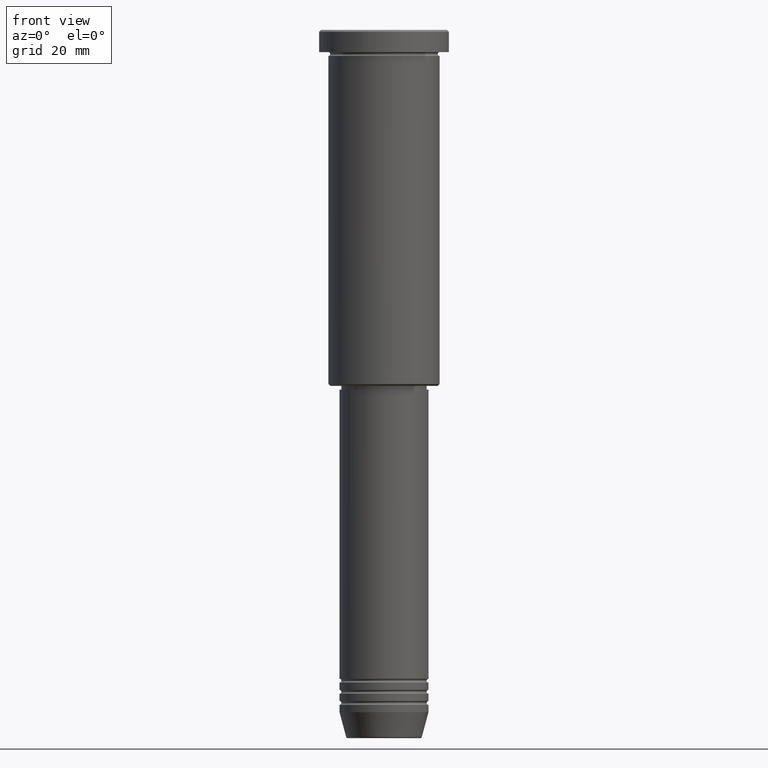
[diagram: clean part render]
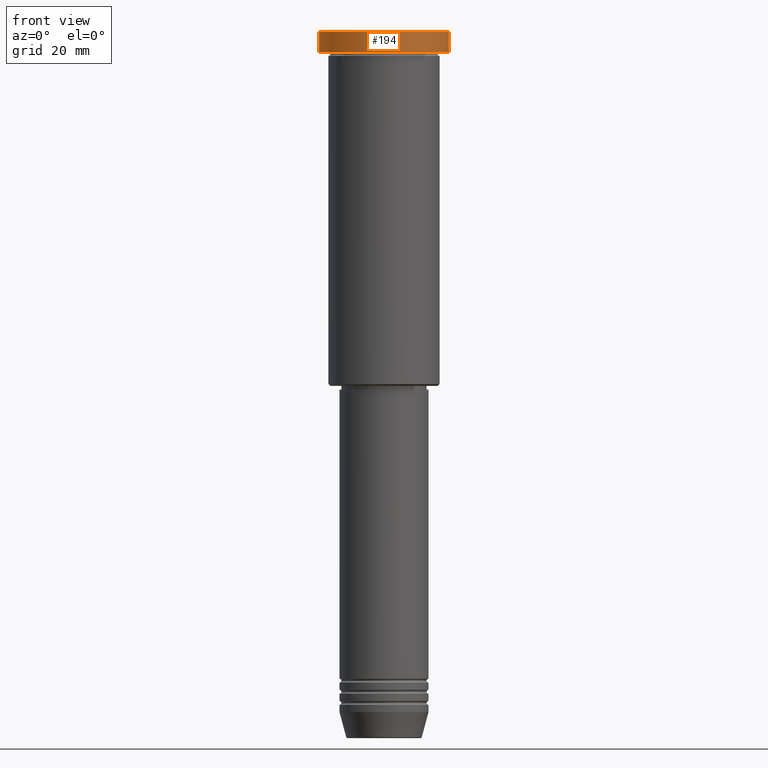
[diagram: same view with one face highlighted and labeled with its STEP entity id]
A machine part, front view. The second image highlights one B-rep face of the part: STEP entity #194.
In plain terms, the highlighted cylindrical surface (partial cylindrical patch) has radius 17.5 mm, axis along (-0, -0, 1).
Its self-contained STEP definition (entity closure, byte-faithful):
#7 = CARTESIAN_POINT ( 'NONE',  ( 0.000000000000000000, 0.000000000000000000, 0.000000000000000000 ) ) ;
#21 = CIRCLE ( 'NONE', #420, 17.50000000000000000 ) ;
#31 = EDGE_CURVE ( 'NONE', #671, #658, #1050, .T. ) ;
#36 = AXIS2_PLACEMENT_3D ( 'NONE', #1172, #692, #148 ) ;
#143 = CARTESIAN_POINT ( 'NONE',  ( -17.50000000000000000, 2.143131898507868248E-15, -5.999999999999995559 ) ) ;
#148 = DIRECTION ( 'NONE',  ( 1.000000000000000000, 0.000000000000000000, 0.000000000000000000 ) ) ;
#180 = VERTEX_POINT ( 'NONE', #541 ) ;
#190 = LINE ( 'NONE', #290, #1083 ) ;
#194 = ADVANCED_FACE ( 'NONE', ( #1086 ), #802, .T. ) ;
#290 = CARTESIAN_POINT ( 'NONE',  ( 17.50000000000000000, 0.000000000000000000, 0.000000000000000000 ) ) ;
#335 = DIRECTION ( 'NONE',  ( -0.000000000000000000, -0.000000000000000000, 1.000000000000000000 ) ) ;
#378 = DIRECTION ( 'NONE',  ( -0.000000000000000000, -0.000000000000000000, 1.000000000000000000 ) ) ;
#391 = VERTEX_POINT ( 'NONE', #143 ) ;
#420 = AXIS2_PLACEMENT_3D ( 'NONE', #1138, #335, #730 ) ;
#447 = CARTESIAN_POINT ( 'NONE',  ( 17.50000000000000000, 0.000000000000000000, -0.5000000000000003331 ) ) ;
#448 = EDGE_LOOP ( 'NONE', ( #900, #626, #548, #1074 ) ) ;
#469 = EDGE_CURVE ( 'NONE', #391, #180, #21, .T. ) ;
#541 = CARTESIAN_POINT ( 'NONE',  ( 17.50000000000000000, 0.000000000000000000, -5.999999999999995559 ) ) ;
#548 = ORIENTED_EDGE ( 'NONE', *, *, #795, .T. ) ;
#626 = ORIENTED_EDGE ( 'NONE', *, *, #469, .T. ) ;
#627 = LINE ( 'NONE', #714, #641 ) ;
#628 = CARTESIAN_POINT ( 'NONE',  ( -17.50000000000000000, 2.143131898507868248E-15, -0.5000000000000003331 ) ) ;
#633 = DIRECTION ( 'NONE',  ( 1.000000000000000000, 0.000000000000000000, 0.000000000000000000 ) ) ;
#641 = VECTOR ( 'NONE', #1093, 1000.000000000000000 ) ;
#658 = VERTEX_POINT ( 'NONE', #628 ) ;
#671 = VERTEX_POINT ( 'NONE', #447 ) ;
#692 = DIRECTION ( 'NONE',  ( 0.000000000000000000, 0.000000000000000000, -1.000000000000000000 ) ) ;
#714 = CARTESIAN_POINT ( 'NONE',  ( -17.50000000000000000, 2.143131898507868248E-15, 0.000000000000000000 ) ) ;
#730 = DIRECTION ( 'NONE',  ( 1.000000000000000000, 0.000000000000000000, 0.000000000000000000 ) ) ;
#795 = EDGE_CURVE ( 'NONE', #180, #671, #190, .T. ) ;
#802 = CYLINDRICAL_SURFACE ( 'NONE', #908, 17.50000000000000000 ) ;
#900 = ORIENTED_EDGE ( 'NONE', *, *, #910, .F. ) ;
#908 = AXIS2_PLACEMENT_3D ( 'NONE', #7, #378, #633 ) ;
#910 = EDGE_CURVE ( 'NONE', #391, #658, #627, .T. ) ;
#1050 = CIRCLE ( 'NONE', #36, 17.50000000000000000 ) ;
#1074 = ORIENTED_EDGE ( 'NONE', *, *, #31, .T. ) ;
#1083 = VECTOR ( 'NONE', #1106, 1000.000000000000000 ) ;
#1086 = FACE_OUTER_BOUND ( 'NONE', #448, .T. ) ;
#1093 = DIRECTION ( 'NONE',  ( -0.000000000000000000, -0.000000000000000000, 1.000000000000000000 ) ) ;
#1106 = DIRECTION ( 'NONE',  ( -0.000000000000000000, -0.000000000000000000, 1.000000000000000000 ) ) ;
#1138 = CARTESIAN_POINT ( 'NONE',  ( 0.000000000000000000, 0.000000000000000000, -5.999999999999995559 ) ) ;
#1172 = CARTESIAN_POINT ( 'NONE',  ( 0.000000000000000000, 0.000000000000000000, -0.5000000000000003331 ) ) ;